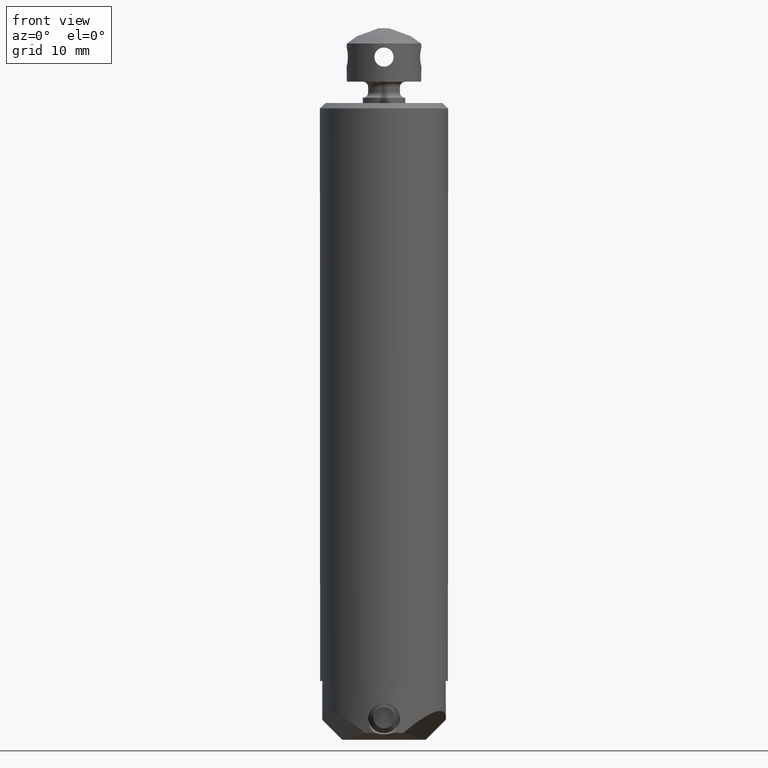
[diagram: clean part render]
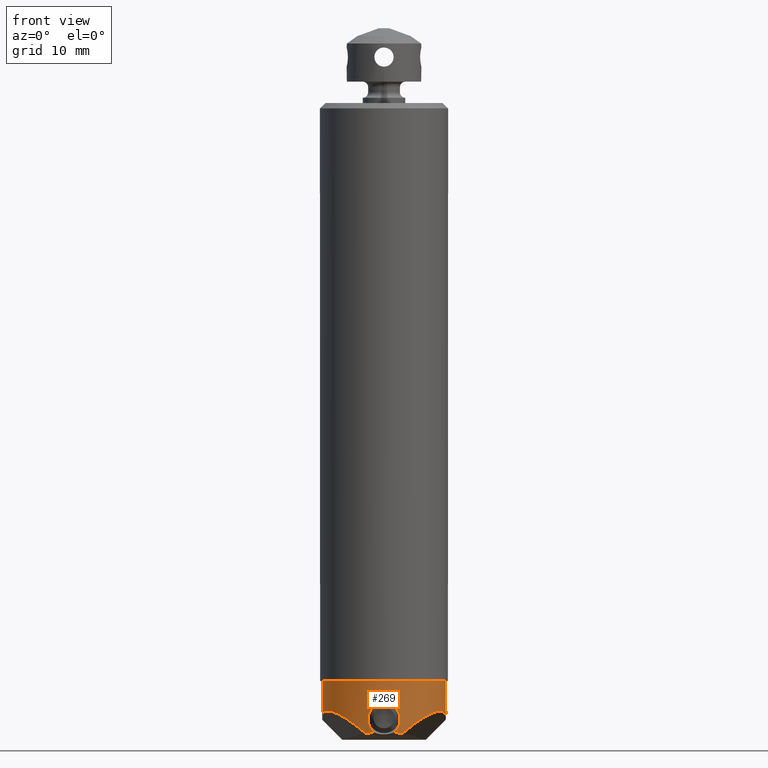
[diagram: same view with one face highlighted and labeled with its STEP entity id]
A machine part, front view. The second image highlights one B-rep face of the part: STEP entity #269.
In plain terms, the highlighted cylindrical surface (partial cylindrical patch) has radius 5.8 mm, axis along (0, 0, -1).
Its self-contained STEP definition (entity closure, byte-faithful):
#77=CYLINDRICAL_SURFACE('',#1711,5.8);
#118=ELLIPSE('',#1703,5.83194802146836,5.8);
#119=ELLIPSE('',#1704,8.62455439948384,5.8);
#120=ELLIPSE('',#1705,8.20243866175177,5.8);
#121=ELLIPSE('',#1708,8.20243866175177,5.8);
#122=ELLIPSE('',#1709,8.62455439948215,5.8);
#123=ELLIPSE('',#1710,5.83194802146836,5.8);
#138=FACE_OUTER_BOUND('',#398,.T.);
#221=B_SPLINE_CURVE_WITH_KNOTS('',3,(#2473,#2474,#2475,#2476),
 .UNSPECIFIED.,.F.,.F.,(4,4),(0.,1.),.UNSPECIFIED.);
#222=B_SPLINE_CURVE_WITH_KNOTS('',3,(#2481,#2482,#2483,#2484),
 .UNSPECIFIED.,.F.,.F.,(4,4),(0.,1.),.UNSPECIFIED.);
#223=B_SPLINE_CURVE_WITH_KNOTS('',3,(#2488,#2489,#2490,#2491),
 .UNSPECIFIED.,.F.,.F.,(4,4),(0.,1.),.UNSPECIFIED.);
#224=B_SPLINE_CURVE_WITH_KNOTS('',3,(#2519,#2520,#2521,#2522),
 .UNSPECIFIED.,.F.,.F.,(4,4),(0.,1.),.UNSPECIFIED.);
#225=B_SPLINE_CURVE_WITH_KNOTS('',3,(#2524,#2525,#2526,#2527,#2528,#2529,
#2530,#2531,#2532,#2533,#2534,#2535,#2536,#2537,#2538,#2539,#2540,#2541,
#2542,#2543,#2544,#2545,#2546,#2547,#2548),.UNSPECIFIED.,.F.,.F.,(4,3,3,
3,3,3,3,3,4),(0.,0.131008940685111,0.261929968165631,0.39413182709942,0.526284284931967,
0.655366948495996,0.783373562775306,0.915409651203965,1.),.UNSPECIFIED.);
#226=B_SPLINE_CURVE_WITH_KNOTS('',3,(#2565,#2566,#2567,#2568,#2569,#2570,
#2571,#2572,#2573,#2574,#2575,#2576,#2577,#2578,#2579,#2580,#2581,#2582,
#2583,#2584,#2585,#2586,#2587,#2588,#2589),.UNSPECIFIED.,.F.,.F.,(4,3,3,
3,3,3,3,3,4),(0.,0.136389119015565,0.272786436696111,0.408360525960394,
0.538393055702305,0.666227821796728,0.796601626471324,0.929162541982768,
1.),.UNSPECIFIED.);
#269=ADVANCED_FACE('',(#138),#77,.T.);
#398=EDGE_LOOP('',(#745,#746,#747,#748,#749,#750,#751,#752,#753,#754,#755,
#756,#757,#758));
#745=ORIENTED_EDGE('',*,*,#1334,.T.);
#746=ORIENTED_EDGE('',*,*,#1335,.T.);
#747=ORIENTED_EDGE('',*,*,#1336,.T.);
#748=ORIENTED_EDGE('',*,*,#1337,.T.);
#749=ORIENTED_EDGE('',*,*,#1319,.F.);
#750=ORIENTED_EDGE('',*,*,#1317,.F.);
#751=ORIENTED_EDGE('',*,*,#1338,.T.);
#752=ORIENTED_EDGE('',*,*,#1339,.T.);
#753=ORIENTED_EDGE('',*,*,#1314,.F.);
#754=ORIENTED_EDGE('',*,*,#1333,.F.);
#755=ORIENTED_EDGE('',*,*,#1340,.T.);
#756=ORIENTED_EDGE('',*,*,#1341,.T.);
#757=ORIENTED_EDGE('',*,*,#1342,.T.);
#758=ORIENTED_EDGE('',*,*,#1343,.T.);
#1165=VERTEX_POINT('',#2472);
#1166=VERTEX_POINT('',#2477);
#1167=VERTEX_POINT('',#2480);
#1168=VERTEX_POINT('',#2485);
#1169=VERTEX_POINT('',#2492);
#1178=VERTEX_POINT('',#2518);
#1179=VERTEX_POINT('',#2549);
#1180=VERTEX_POINT('',#2550);
#1181=VERTEX_POINT('',#2552);
#1182=VERTEX_POINT('',#2554);
#1183=VERTEX_POINT('',#2557);
#1184=VERTEX_POINT('',#2560);
#1185=VERTEX_POINT('',#2562);
#1186=VERTEX_POINT('',#2564);
#1314=EDGE_CURVE('',#1165,#1166,#221,.T.);
#1317=EDGE_CURVE('',#1167,#1168,#222,.T.);
#1319=EDGE_CURVE('',#1168,#1169,#223,.T.);
#1333=EDGE_CURVE('',#1178,#1165,#224,.T.);
#1334=EDGE_CURVE('',#1179,#1180,#225,.T.);
#1335=EDGE_CURVE('',#1180,#1181,#118,.T.);
#1336=EDGE_CURVE('',#1181,#1182,#119,.T.);
#1337=EDGE_CURVE('',#1182,#1169,#120,.T.);
#1338=EDGE_CURVE('',#1167,#1183,#1531,.T.);
#1339=EDGE_CURVE('',#1183,#1166,#1532,.T.);
#1340=EDGE_CURVE('',#1178,#1184,#121,.T.);
#1341=EDGE_CURVE('',#1184,#1185,#122,.T.);
#1342=EDGE_CURVE('',#1185,#1186,#123,.T.);
#1343=EDGE_CURVE('',#1186,#1179,#226,.T.);
#1531=CIRCLE('',#1706,5.8);
#1532=CIRCLE('',#1707,5.8);
#1703=AXIS2_PLACEMENT_3D('',#2551,#1966,#1967);
#1704=AXIS2_PLACEMENT_3D('',#2553,#1968,#1969);
#1705=AXIS2_PLACEMENT_3D('',#2555,#1970,#1971);
#1706=AXIS2_PLACEMENT_3D('',#2556,#1972,#1973);
#1707=AXIS2_PLACEMENT_3D('',#2558,#1974,#1975);
#1708=AXIS2_PLACEMENT_3D('',#2559,#1976,#1977);
#1709=AXIS2_PLACEMENT_3D('',#2561,#1978,#1979);
#1710=AXIS2_PLACEMENT_3D('',#2563,#1980,#1981);
#1711=AXIS2_PLACEMENT_3D('',#2590,#1982,#1983);
#1966=DIRECTION('',(0.,0.104528463267598,0.99452189536828));
#1967=DIRECTION('',(0.,0.994521895368279,-0.104528463267598));
#1968=DIRECTION('',(-0.672498511964668,0.309016994374685,0.672498511963368));
#1969=DIRECTION('',(-0.611073072575217,0.280791646183477,-0.740098474128312));
#1970=DIRECTION('',(-0.707106781185498,0.,0.707106781187598));
#1971=DIRECTION('',(-0.707106781187598,0.,-0.707106781185498));
#1972=DIRECTION('',(0.,0.,-1.));
#1973=DIRECTION('',(0.836373801313673,0.548159524660583,0.));
#1974=DIRECTION('',(0.,0.,-1.));
#1975=DIRECTION('',(0.,-1.,0.));
#1976=DIRECTION('',(0.707106781185498,0.,0.707106781187598));
#1977=DIRECTION('',(0.707106781187598,0.,-0.707106781185498));
#1978=DIRECTION('',(0.672498511964299,0.3090169943752,0.672498511963499));
#1979=DIRECTION('',(0.611073072575101,0.280791646184045,-0.740098474128193));
#1980=DIRECTION('',(0.,0.104528463267598,0.99452189536828));
#1981=DIRECTION('',(0.,0.994521895368279,-0.104528463267598));
#1982=DIRECTION('',(0.,0.,-1.));
#1983=DIRECTION('',(0.,1.,0.));
#2472=CARTESIAN_POINT('',(-4.570280618861,3.571069176713,-58.53941222926));
#2473=CARTESIAN_POINT('',(-4.570280618861,3.571069176713,-58.53941222926));
#2474=CARTESIAN_POINT('',(-4.672276665426,3.440533885529,-57.04738702368));
#2475=CARTESIAN_POINT('',(-4.765356599325,3.30994994118,-55.55480570987));
#2476=CARTESIAN_POINT('',(-4.850968047619,3.179325243031,-54.06175857799));
#2477=CARTESIAN_POINT('',(-4.850968047619,3.179325243031,-54.06175857799));
#2480=CARTESIAN_POINT('',(4.850968047619,3.179325243031,-54.06175857799));
#2481=CARTESIAN_POINT('',(4.850968047619,3.179325243032,-54.061758578));
#2482=CARTESIAN_POINT('',(4.765356599324,3.309949941181,-55.55480570987));
#2483=CARTESIAN_POINT('',(4.672276665426,3.44053388553,-57.04738702368));
#2484=CARTESIAN_POINT('',(4.570280618861,3.571069176713,-58.53941222926));
#2485=CARTESIAN_POINT('',(4.570280618861,3.571069176713,-58.53941222926));
#2488=CARTESIAN_POINT('',(4.570280618861,3.571069176713,-58.53941222926));
#2489=CARTESIAN_POINT('',(4.604684386365,3.527038981815,-58.62304272452));
#2490=CARTESIAN_POINT('',(4.638704933422,3.48218841587,-58.70638792467));
#2491=CARTESIAN_POINT('',(4.672324196205,3.436478809123,-58.78943438178));
#2492=CARTESIAN_POINT('',(4.6723241962057,3.43647880912027,-58.7894343817803));
#2518=CARTESIAN_POINT('',(-4.67232419620578,3.43647880912102,-58.7894343817815));
#2519=CARTESIAN_POINT('',(-4.672324196205,3.436478809123,-58.78943438178));
#2520=CARTESIAN_POINT('',(-4.638704933423,3.48218841587,-58.70638792467));
#2521=CARTESIAN_POINT('',(-4.604684386365,3.527038981815,-58.62304272452));
#2522=CARTESIAN_POINT('',(-4.570280618861,3.571069176713,-58.53941222926));
#2524=CARTESIAN_POINT('',(6.3136903608619E-38,-5.8,-56.1645311619109));
#2525=CARTESIAN_POINT('',(0.166692251965889,-5.8,-56.1645311619109));
#2526=CARTESIAN_POINT('',(0.335676017199596,-5.79242784288942,-56.192572917272));
#2527=CARTESIAN_POINT('',(0.492898422068847,-5.77901818179542,-56.2463093412499));
#2528=CARTESIAN_POINT('',(0.650060268539873,-5.76561368578968,-56.3000250672124));
#2529=CARTESIAN_POINT('',(0.799801074233403,-5.7461084907371,-56.3808397012638));
#2530=CARTESIAN_POINT('',(0.930169302703733,-5.72492664305034,-56.4824288741569));
#2531=CARTESIAN_POINT('',(1.06177444396344,-5.70354382539863,-56.5849819087876));
#2532=CARTESIAN_POINT('',(1.1772992619797,-5.68000484847681,-56.7115911980698));
#2533=CARTESIAN_POINT('',(1.26720712611487,-5.65987509575288,-56.8523236819909));
#2534=CARTESIAN_POINT('',(1.35704020742064,-5.63976208639037,-56.9929391085952));
#2535=CARTESIAN_POINT('',(1.42376559630873,-5.62266988655956,-57.1517146099917));
#2536=CARTESIAN_POINT('',(1.46155819301945,-5.6128288454591,-57.3151835287057));
#2537=CARTESIAN_POINT('',(1.49849296596438,-5.60321117823793,-57.4749419978702));
#2538=CARTESIAN_POINT('',(1.50882312405247,-5.6003348226567,-57.6435824487038));
#2539=CARTESIAN_POINT('',(1.49215983996591,-5.60477109363022,-57.8069290125132));
#2540=CARTESIAN_POINT('',(1.47562169441779,-5.60917404893422,-57.9690488703415));
#2541=CARTESIAN_POINT('',(1.43219756787506,-5.62080645865617,-58.1302607401331));
#2542=CARTESIAN_POINT('',(1.36588806976828,-5.63687411433541,-58.2783168966334));
#2543=CARTESIAN_POINT('',(1.29750586579865,-5.65344401366118,-58.431001000447));
#2544=CARTESIAN_POINT('',(1.20303665811212,-5.67503571298751,-58.5738102409379));
#2545=CARTESIAN_POINT('',(1.08964730316907,-5.69672438816346,-58.6960214453976));
#2546=CARTESIAN_POINT('',(1.0164390828653,-5.71072737205181,-58.7749253670591));
#2547=CARTESIAN_POINT('',(0.934417303637472,-5.72493120481407,-58.8464591844967));
#2548=CARTESIAN_POINT('',(0.846080825689363,-5.73795671266356,-58.908171085621));
#2549=CARTESIAN_POINT('',(6.3136903608619E-38,-5.8,-56.1645311619109));
#2550=CARTESIAN_POINT('',(0.846080825687973,-5.73795671266394,-58.9081710856286));
#2551=CARTESIAN_POINT('',(0.,0.,-59.5112546378991));
#2552=CARTESIAN_POINT('',(1.77251689188221,-5.5225160812794,-58.930814808433));
#2553=CARTESIAN_POINT('',(0.,0.,-63.2409600972068));
#2554=CARTESIAN_POINT('',(5.78006119000731,0.480512892435838,-57.6816973879891));
#2555=CARTESIAN_POINT('',(0.,0.,-63.4617585779796));
#2556=CARTESIAN_POINT('',(0.,0.,-54.06175857799));
#2557=CARTESIAN_POINT('',(0.,-5.8,-54.06175857799));
#2558=CARTESIAN_POINT('',(0.,0.,-54.06175857799));
#2559=CARTESIAN_POINT('',(0.,0.,-63.4617585779796));
#2560=CARTESIAN_POINT('',(-5.7800611900056,0.480512892428812,-57.6816973879887));
#2561=CARTESIAN_POINT('',(0.,0.,-63.2409600972086));
#2562=CARTESIAN_POINT('',(-1.77251689188172,-5.52251608127926,-58.9308148084321));
#2563=CARTESIAN_POINT('',(0.,0.,-59.5112546378991));
#2564=CARTESIAN_POINT('',(-0.846080825684543,-5.73795671266427,-58.9081710856243));
#2565=CARTESIAN_POINT('',(-0.846080825684543,-5.73795671266427,-58.9081710856243));
#2566=CARTESIAN_POINT('',(-0.987302484540967,-5.71713310877289,-58.8095135745895));
#2567=CARTESIAN_POINT('',(-1.11281450581729,-5.69316556172605,-58.6849230275924));
#2568=CARTESIAN_POINT('',(-1.21297153269466,-5.67174576835672,-58.5448507379992));
#2569=CARTESIAN_POINT('',(-1.31312028066834,-5.65032774553122,-58.404790026675));
#2570=CARTESIAN_POINT('',(-1.39077038171135,-5.63100774693537,-58.2452097049533));
#2571=CARTESIAN_POINT('',(-1.43911469557506,-5.61862517818905,-58.0790320723207));
#2572=CARTESIAN_POINT('',(-1.4871351710886,-5.60632555509472,-57.9139675941852));
#2573=CARTESIAN_POINT('',(-1.50745684788924,-5.60068574914847,-57.7375569287672));
#2574=CARTESIAN_POINT('',(-1.49746305510191,-5.60335652967084,-57.565520537919));
#2575=CARTESIAN_POINT('',(-1.4878686616852,-5.60592057313328,-57.4003595373945));
#2576=CARTESIAN_POINT('',(-1.45006145186177,-5.6161844819918,-57.2346187219717));
#2577=CARTESIAN_POINT('',(-1.38708708079701,-5.63169507611039,-57.0824003496994));
#2578=CARTESIAN_POINT('',(-1.32512266136694,-5.64695691903671,-56.932623179956));
#2579=CARTESIAN_POINT('',(-1.23721474880423,-5.6675526955495,-56.7918394000872));
#2580=CARTESIAN_POINT('',(-1.13042709128182,-5.68877267882064,-56.6707946884638));
#2581=CARTESIAN_POINT('',(-1.02154477336451,-5.71040889613576,-56.5473756615935));
#2582=CARTESIAN_POINT('',(-0.890093312844726,-5.73312424766818,-56.4410846152352));
#2583=CARTESIAN_POINT('',(-0.746454013358165,-5.75176550338602,-56.3599920972285));
#2584=CARTESIAN_POINT('',(-0.600498570523904,-5.77070734411492,-56.2775919851526));
#2585=CARTESIAN_POINT('',(-0.437855249754732,-5.78583040706387,-56.2189591233006));
#2586=CARTESIAN_POINT('',(-0.272053853135499,-5.79361602982059,-56.188945059086));
#2587=CARTESIAN_POINT('',(-0.182532005034845,-5.79781975398703,-56.1727394386734));
#2588=CARTESIAN_POINT('',(-0.0910738970164859,-5.79999999999995,-56.1645311619111));
#2589=CARTESIAN_POINT('',(-3.21886697861312E-12,-5.8,-56.1645311619109));
#2590=CARTESIAN_POINT('',(0.,0.,-53.96437745338));